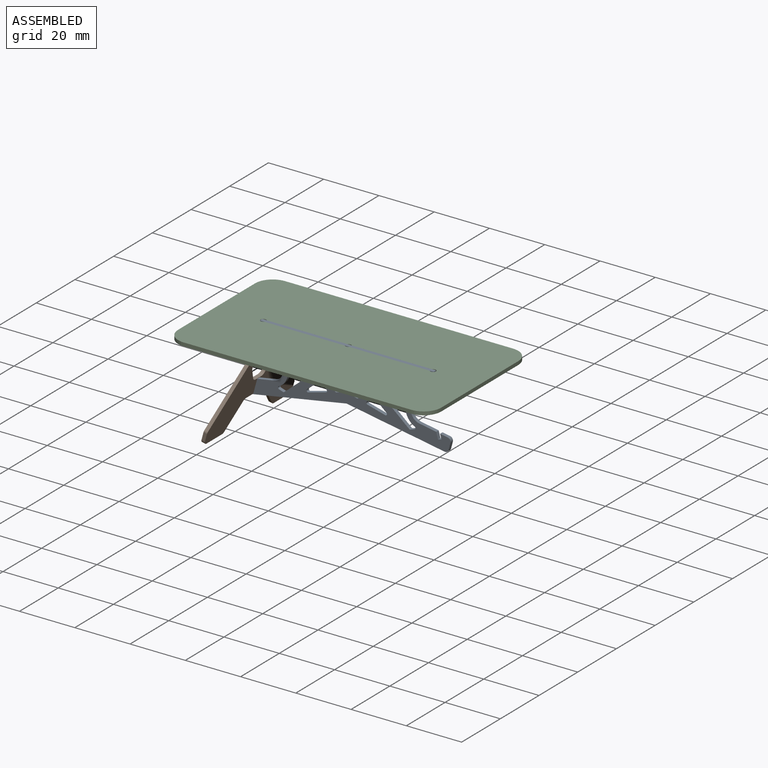
[diagram: assembled view]
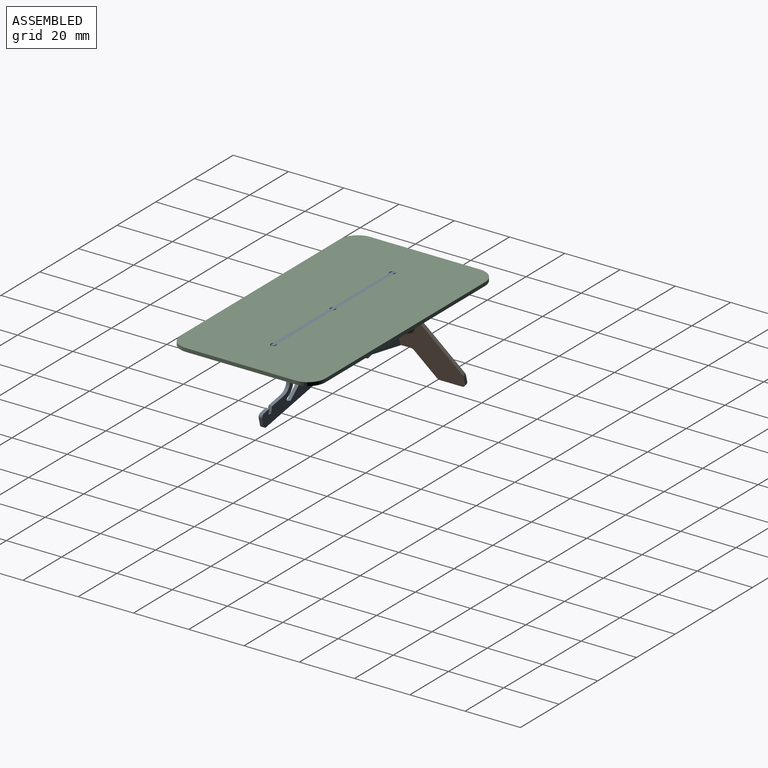
[diagram: assembled view, second angle]
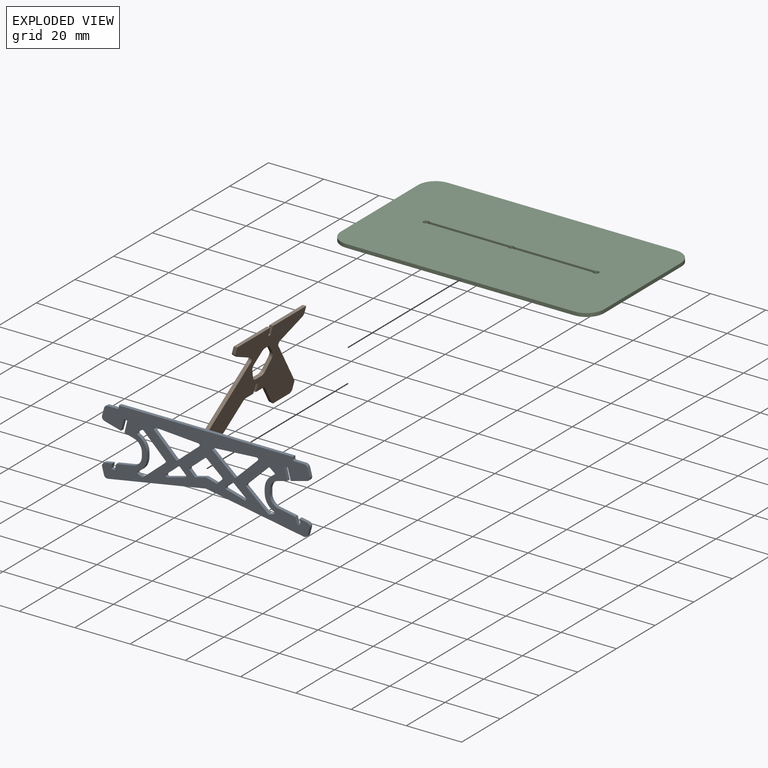
[diagram: exploded view]
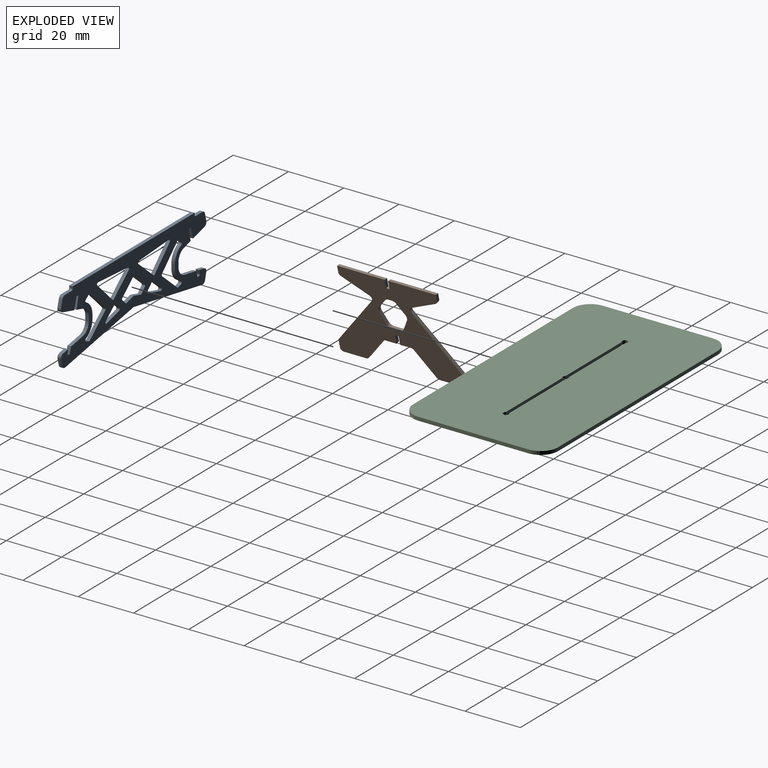
[diagram: exploded view, second angle]
ASSEMBLY  parts=3 mates=3
PART A: 109 faces, bbox 75.2x1.3x25.1 mm
  f0: cylinder r=0.51mm len=1.27mm, axis (0,1,0), area 0.9mm2, adj f1,f106,f107,f108
  f1: plane 7.85x7.68mm, normal (-0.7,0,-0.71), area 13.9mm2, adj f0,f2,f107,f108
  f2: cylinder r=0.51mm len=1.27mm, axis (0,1,0), area 1.1mm2, adj f1,f3,f107,f108
  f3: plane 7.91x6.75mm, normal (-0.65,0,0.76), area 13.2mm2, adj f2,f4,f107,f108
  f4: cylinder r=0.51mm len=1.27mm, axis (0,1,0), area 0.7mm2, adj f3,f5,f107,f108
  f5: plane 1.45x1.27mm, normal (0.32,0,0.95), area 2mm2, adj f4,f6,f107,f108
  f6: cylinder r=0.51mm len=1.27mm, axis (0,1,0), area 1.5mm2, adj f5,f7,f107,f108
  f7: cylinder r=5.69mm len=5.16mm, axis (0,1,0), area 8.2mm2, adj f6,f8,f107,f108
  f8: plane 1.5x1.27mm, normal (1,0,0), area 1.9mm2, adj f7,f9,f107,f108
  f9: cylinder r=5.69mm len=5.19mm, axis (0,1,0), area 8.3mm2, adj f8,f10,f107,f108
  f10: cylinder r=0.51mm len=1.27mm, axis (0,1,0), area 1.3mm2, adj f9,f106,f107,f108
  f11: plane 3.48x1.27mm, normal (0.27,0,0.96), area 4.6mm2, adj f12,f99,f107,f108
  f12: cylinder r=0.51mm len=1.27mm, axis (0,1,0), area 0.3mm2, adj f11,f13,f107,f108
  f13: plane 3.59x1.27mm, normal (-0.26,0,0.97), area 4.7mm2, adj f12,f14,f107,f108
  f14: cylinder r=0.51mm len=1.27mm, axis (0,1,0), area 0.7mm2, adj f13,f15,f107,f108
  f15: plane 1.69x1.66mm, normal (0.7,0,0.71), area 3mm2, adj f14,f16,f107,f108
  f16: cylinder r=0.51mm len=1.27mm, axis (0,1,0), area 1.1mm2, adj f15,f17,f107,f108
  f17: plane 5.49x4.69mm, normal (0.65,0,-0.76), area 9.2mm2, adj f16,f18,f107,f108
  f18: cylinder r=0.51mm len=1.27mm, axis (0,1,0), area 0.9mm2, adj f17,f19,f107,f108
  f19: plane 5.49x4.69mm, normal (-0.65,0,-0.76), area 9.2mm2, adj f18,f20,f107,f108
  f20: cylinder r=0.51mm len=1.27mm, axis (0,1,0), area 1.1mm2, adj f19,f21,f107,f108
  f21: plane 1.69x1.65mm, normal (-0.7,0,0.71), area 3mm2, adj f20,f99,f107,f108
  f22: cylinder r=0.51mm len=1.27mm, axis (0,1,0), area 1mm2, adj f23,f100,f107,f108
  f23: plane 7.81x6.67mm, normal (0.65,0,0.76), area 13mm2, adj f22,f24,f107,f108
  f24: cylinder r=0.51mm len=1.27mm, axis (0,1,0), area 1.5mm2, adj f23,f25,f107,f108
  f25: plane 15.68x1.27mm, normal (0.07,0,-1), area 20mm2, adj f24,f26,f107,f108
  f26: cylinder r=0.51mm len=1.27mm, axis (0,1,0), area 1.6mm2, adj f25,f100,f107,f108
  f27: cylinder r=0.51mm len=1.27mm, axis (0,1,0), area 1.4mm2, adj f28,f101,f107,f108
  f28: plane 2.06x2.02mm, normal (0.7,0,-0.71), area 3.7mm2, adj f27,f29,f107,f108
  f29: cylinder r=0.51mm len=1.27mm, axis (0,1,0), area 1mm2, adj f28,f30,f107,f108
  f30: plane 4.39x3.74mm, normal (-0.65,0,-0.76), area 7.3mm2, adj f29,f31,f107,f108
  f31: cylinder r=0.51mm len=1.27mm, axis (0,1,0), area 1.7mm2, adj f30,f101,f107,f108
  f32: plane 5.95x1.59mm, normal (-0.26,0,-0.97), area 7.8mm2, adj f33,f102,f107,f108
  f33: plane 4.19x1.27mm, normal (0.97,0,-0.26), area 5.5mm2, adj f32,f34,f107,f108
  f34: plane 1.27x1.16mm, normal (-0.24,0,-0.97), area 1.5mm2, adj f33,f35,f107,f108
  f35: plane 4.24x1.27mm, normal (-0.97,0,0.24), area 5.5mm2, adj f34,f36,f107,f108
  f36: plane 3.48x1.27mm, normal (-0.26,0,-0.97), area 4.6mm2, adj f35,f37,f107,f108
  f37: cylinder r=3.81mm len=3.68mm, axis (0,1,0), area 6.3mm2, adj f36,f38,f107,f108
  f38: plane 1.5x1.27mm, normal (-1,0,0), area 1.9mm2, adj f37,f39,f107,f108
  f39: cylinder r=3.81mm len=3.75mm, axis (0,1,0), area 6.8mm2, adj f38,f40,f107,f108
  f40: plane 6.08x1.27mm, normal (-0.17,0,0.98), area 7.8mm2, adj f39,f41,f107,f108
  f41: plane 2.29x1.27mm, normal (-0.96,0,0.27), area 3mm2, adj f40,f42,f107,f108
  f42: plane 1.27x1.23mm, normal (0.26,0,0.97), area 1.6mm2, adj f41,f43,f107,f108
  f43: plane 1.72x1.27mm, normal (0.97,0,-0.26), area 2.3mm2, adj f42,f44,f107,f108
  f44: plane 2.73x1.27mm, normal (-0.17,0,0.98), area 3.5mm2, adj f43,f45,f107,f108
  f45: cylinder r=1.27mm len=1.58mm, axis (0,1,0), area 2.7mm2, adj f44,f46,f107,f108
  f46: plane 2.44x1.27mm, normal (-0.97,0,-0.26), area 3.2mm2, adj f45,f47,f107,f108
  f47: cylinder r=1.27mm len=1.45mm, axis (0,1,0), area 2.4mm2, adj f46,f48,f107,f108
  f48: plane 35.43x6.25mm, normal (0.17,0,-0.98), area 45.7mm2, adj f47,f49,f107,f108
  f49: plane 35.43x6.25mm, normal (-0.17,0,-0.98), area 45.7mm2, adj f48,f50,f107,f108
  f50: cylinder r=1.27mm len=1.45mm, axis (0,1,0), area 2.4mm2, adj f49,f51,f107,f108
  f51: plane 2.44x1.27mm, normal (0.97,0,-0.26), area 3.2mm2, adj f50,f52,f107,f108
  f52: cylinder r=1.27mm len=1.58mm, axis (0,1,0), area 2.7mm2, adj f51,f53,f107,f108
  f53: plane 2.73x1.27mm, normal (0.17,0,0.98), area 3.5mm2, adj f52,f54,f107,f108
  f54: plane 1.72x1.27mm, normal (-0.97,0,-0.26), area 2.3mm2, adj f53,f55,f107,f108
  f55: plane 1.27x1.23mm, normal (-0.26,0,0.97), area 1.6mm2, adj f54,f56,f107,f108
  f56: plane 2.29x1.27mm, normal (0.96,0,0.27), area 3mm2, adj f55,f57,f107,f108
  f57: plane 6.08x1.27mm, normal (0.17,0,0.98), area 7.8mm2, adj f56,f58,f107,f108
  f58: cylinder r=3.81mm len=3.75mm, axis (0,1,0), area 6.8mm2, adj f57,f59,f107,f108
  f59: plane 1.5x1.27mm, normal (1,0,0), area 1.9mm2, adj f58,f60,f107,f108
  f60: cylinder r=3.81mm len=3.68mm, axis (0,1,0), area 6.3mm2, adj f59,f61,f107,f108
  f61: plane 3.48x1.27mm, normal (0.26,0,-0.97), area 4.6mm2, adj f60,f62,f107,f108
  f62: plane 4.24x1.27mm, normal (0.97,0,0.24), area 5.5mm2, adj f61,f63,f107,f108
  f63: plane 1.27x1.16mm, normal (0.24,0,-0.97), area 1.5mm2, adj f62,f64,f107,f108
  f64: plane 4.19x1.27mm, normal (-0.97,0,-0.26), area 5.5mm2, adj f63,f65,f107,f108
  f65: plane 5.95x1.59mm, normal (0.26,0,-0.97), area 7.8mm2, adj f64,f66,f107,f108
  f66: cylinder r=1.27mm len=1.56mm, axis (0,1,0), area 2.5mm2, adj f65,f67,f107,f108
  f67: plane 2.74x1.27mm, normal (0.97,0,0.26), area 3.6mm2, adj f66,f68,f107,f108
  f68: cylinder r=1.27mm len=1.27mm, axis (0,1,0), area 2.1mm2, adj f67,f69,f107,f108
  f69: plane 3.6x1.27mm, normal (0,0,1), area 4.6mm2, adj f68,f70,f107,f108
  f70: cylinder r=0.51mm len=1.27mm, axis (0,1,0), area 1mm2, adj f69,f71,f107,f108
  f71: plane 1.27x0.76mm, normal (1,0,0), area 1mm2, adj f70,f72,f107,f108
  f72: plane 62.99x1.27mm, normal (0,0,1), area 80mm2, adj f71,f73,f107,f108
  f73: plane 1.27x0.76mm, normal (-1,0,0), area 1mm2, adj f72,f74,f107,f108
  f74: cylinder r=0.51mm len=1.27mm, axis (0,1,0), area 1mm2, adj f73,f75,f107,f108
  f75: plane 3.6x1.27mm, normal (0,0,1), area 4.6mm2, adj f74,f76,f107,f108
  f76: cylinder r=1.27mm len=1.27mm, axis (0,1,0), area 2.1mm2, adj f75,f77,f107,f108
  f77: plane 2.74x1.27mm, normal (-0.97,0,0.26), area 3.6mm2, adj f76,f102,f107,f108
  f78: plane 1.59x1.27mm, normal (-0.59,0,-0.81), area 2.5mm2, adj f79,f103,f107,f108
  f79: cylinder r=0.51mm len=1.27mm, axis (0,1,0), area 1.3mm2, adj f78,f80,f107,f108
  f80: cylinder r=5.69mm len=5.19mm, axis (0,1,0), area 8.3mm2, adj f79,f81,f107,f108
  f81: plane 1.5x1.27mm, normal (-1,0,0), area 1.9mm2, adj f80,f82,f107,f108
  f82: cylinder r=5.69mm len=5.16mm, axis (0,1,0), area 8.2mm2, adj f81,f83,f107,f108
  f83: cylinder r=0.51mm len=1.27mm, axis (0,1,0), area 1.5mm2, adj f82,f84,f107,f108
  f84: plane 1.45x1.27mm, normal (-0.32,0,0.95), area 2mm2, adj f83,f85,f107,f108
  f85: cylinder r=0.51mm len=1.27mm, axis (0,1,0), area 0.7mm2, adj f84,f86,f107,f108
  f86: plane 7.91x6.75mm, normal (0.65,0,0.76), area 13.2mm2, adj f85,f87,f107,f108
  f87: cylinder r=0.51mm len=1.27mm, axis (0,1,0), area 1.1mm2, adj f86,f88,f107,f108
  f88: plane 7.85x7.68mm, normal (0.7,0,-0.71), area 13.9mm2, adj f87,f103,f107,f108
  f89: plane 6.45x1.73mm, normal (-0.26,0,0.97), area 8.5mm2, adj f90,f104,f107,f108
  f90: cylinder r=0.51mm len=1.27mm, axis (0,1,0), area 1.7mm2, adj f89,f91,f107,f108
  f91: plane 4.39x3.74mm, normal (0.65,0,-0.76), area 7.3mm2, adj f90,f92,f107,f108
  f92: cylinder r=0.51mm len=1.27mm, axis (0,1,0), area 1mm2, adj f91,f93,f107,f108
  f93: plane 2.06x2.02mm, normal (-0.7,0,-0.71), area 3.7mm2, adj f92,f104,f107,f108
  f94: plane 15.68x1.27mm, normal (-0.07,0,-1), area 20mm2, adj f95,f105,f107,f108
  f95: cylinder r=0.51mm len=1.27mm, axis (0,1,0), area 1.5mm2, adj f94,f96,f107,f108
  f96: plane 7.81x6.67mm, normal (-0.65,0,0.76), area 13mm2, adj f95,f97,f107,f108
  f97: cylinder r=0.51mm len=1.27mm, axis (0,1,0), area 1mm2, adj f96,f98,f107,f108
  f98: plane 7.87x7.7mm, normal (0.7,0,0.71), area 14mm2, adj f97,f105,f107,f108
  f99: cylinder r=0.51mm len=1.27mm, axis (0,1,0), area 0.7mm2, adj f11,f21,f107,f108
  f100: plane 7.87x7.7mm, normal (-0.7,0,0.71), area 14mm2, adj f22,f26,f107,f108
  f101: plane 6.45x1.73mm, normal (0.26,0,0.97), area 8.5mm2, adj f27,f31,f107,f108
  f102: cylinder r=1.27mm len=1.56mm, axis (0,1,0), area 2.5mm2, adj f32,f77,f107,f108
  f103: cylinder r=0.51mm len=1.27mm, axis (0,1,0), area 0.9mm2, adj f78,f88,f107,f108
  f104: cylinder r=0.51mm len=1.27mm, axis (0,1,0), area 1.4mm2, adj f89,f93,f107,f108
  f105: cylinder r=0.51mm len=1.27mm, axis (0,1,0), area 1.6mm2, adj f94,f98,f107,f108
  f106: plane 1.59x1.27mm, normal (0.59,0,-0.81), area 2.5mm2, adj f0,f10,f107,f108
  f107: plane 75.21x25.06mm, normal (0,-1,0), area 950.5mm2, adj f0,f1,f2,f3,f4,f5,f6,f7
  f108: plane 75.21x25.06mm, normal (0,1,0), area 950.5mm2, adj f0,f1,f2,f3,f4,f5,f6,f7
PART B: 48 faces, bbox 1.3x45.2x33.5 mm
  f0: plane 2.52x1.27mm, normal (0,1,0), area 3mm2, adj f3,f31,f45,f47
  f1: plane 3.18x1.27mm, normal (0,-1,0), area 3.8mm2, adj f3,f32,f45,f47
  f2: plane 3.18x1.27mm, normal (0,1,0), area 3.8mm2, adj f3,f32,f45,f46
  f3: plane 45.2x33.19mm, normal (-1,0,0), area 759.8mm2, adj f0,f1,f2,f4,f5,f6,f7,f8
  f4: plane 2.52x1.27mm, normal (0,-1,0), area 3mm2, adj f3,f5,f45,f46
  f5: cylinder r=1.27mm len=1.27mm, axis (-1,0,0), area 1.8mm2, adj f3,f4,f6,f45
  f6: plane 9.5x4.41mm, normal (0,-0.42,-0.91), area 13.3mm2, adj f3,f5,f7,f45
  f7: cylinder r=1.27mm len=1.95mm, axis (-1,0,0), area 2.9mm2, adj f3,f6,f8,f45
  f8: plane 18.84x15.18mm, normal (0,-0.78,0.63), area 30.7mm2, adj f3,f7,f9,f45
  f9: cylinder r=1.27mm len=1.27mm, axis (-1,0,0), area 1.1mm2, adj f3,f8,f10,f45
  f10: plane 2.59x1.27mm, normal (0,-1,0), area 3.3mm2, adj f3,f9,f11,f45
  f11: cylinder r=1.27mm len=1.27mm, axis (-1,0,0), area 2.5mm2, adj f3,f10,f12,f45
  f12: plane 8x1.27mm, normal (0,0,-1), area 10.2mm2, adj f3,f11,f13,f45
  f13: cylinder r=1.27mm len=1.27mm, axis (-1,0,0), area 1.4mm2, adj f3,f12,f14,f45
  f14: plane 8.45x6.81mm, normal (0,0.78,-0.63), area 13.8mm2, adj f3,f13,f15,f45
  f15: cylinder r=1.27mm len=1.27mm, axis (-1,0,0), area 1.4mm2, adj f3,f14,f16,f45
  f16: plane 3.91x1.27mm, normal (0,0,-1), area 5mm2, adj f3,f15,f17,f45
  f17: plane 3.25x1.27mm, normal (0,1,0), area 4.1mm2, adj f3,f16,f18,f45
  f18: plane 1.27x1.27mm, normal (0,0,-1), area 1.6mm2, adj f3,f17,f19,f45
  f19: plane 3.25x1.27mm, normal (0,-1,0), area 4.1mm2, adj f3,f18,f20,f45
  f20: plane 3.91x1.27mm, normal (0,0,-1), area 5mm2, adj f3,f19,f21,f45
  f21: cylinder r=1.27mm len=1.27mm, axis (-1,0,0), area 1.4mm2, adj f3,f20,f22,f45
  f22: plane 8.45x6.81mm, normal (0,-0.78,-0.63), area 13.8mm2, adj f3,f21,f23,f45
  f23: cylinder r=1.27mm len=1.27mm, axis (-1,0,0), area 1.4mm2, adj f3,f22,f24,f45
  f24: plane 8x1.27mm, normal (0,0,-1), area 10.2mm2, adj f3,f23,f25,f45
  f25: cylinder r=1.27mm len=1.27mm, axis (-1,0,0), area 2.5mm2, adj f3,f24,f26,f45
  f26: plane 2.59x1.27mm, normal (0,1,0), area 3.3mm2, adj f3,f25,f27,f45
  f27: cylinder r=1.27mm len=1.27mm, axis (-1,0,0), area 1.1mm2, adj f3,f26,f28,f45
  f28: plane 18.84x15.18mm, normal (0,0.78,0.63), area 30.7mm2, adj f3,f27,f29,f45
  f29: cylinder r=1.27mm len=1.95mm, axis (-1,0,0), area 2.9mm2, adj f3,f28,f30,f45
  f30: plane 9.5x4.41mm, normal (0,0.42,-0.91), area 13.3mm2, adj f3,f29,f31,f45
  f31: cylinder r=1.27mm len=1.27mm, axis (-1,0,0), area 1.8mm2, adj f0,f3,f30,f45
  f32: plane 1.27x1.27mm, normal (0,0,1), area 1.6mm2, adj f1,f2,f3,f45
  f33: cylinder r=2.03mm len=1.27mm, axis (-1,0,0), area 1.7mm2, adj f3,f34,f44,f45
  f34: plane 3.59x2.86mm, normal (0,-0.78,-0.62), area 5.8mm2, adj f3,f33,f35,f45
  f35: cylinder r=2.03mm len=2.22mm, axis (-1,0,0), area 3mm2, adj f3,f34,f36,f45
  f36: plane 3.71x1.79mm, normal (0,-0.9,0.43), area 5.2mm2, adj f3,f35,f37,f45
  f37: cylinder r=2.03mm len=1.83mm, axis (-1,0,0), area 2.9mm2, adj f3,f36,f38,f45
  f38: plane 2.72x1.27mm, normal (0,0,1), area 3.4mm2, adj f3,f37,f39,f45
  f39: cylinder r=2.03mm len=1.83mm, axis (-1,0,0), area 2.9mm2, adj f3,f38,f40,f45
  f40: plane 3.71x1.79mm, normal (0,0.9,0.43), area 5.2mm2, adj f3,f39,f41,f45
  f41: cylinder r=2.03mm len=2.22mm, axis (-1,0,0), area 3mm2, adj f3,f40,f42,f45
  f42: plane 3.59x2.86mm, normal (0,0.78,-0.62), area 5.8mm2, adj f3,f41,f43,f45
  f43: cylinder r=2.03mm len=1.27mm, axis (-1,0,0), area 1.7mm2, adj f3,f42,f44,f45
  f44: plane 1.27x1.14mm, normal (0,0,-1), area 1.5mm2, adj f3,f33,f43,f45
  f45: plane 45.2x33.53mm, normal (1,0,0), area 771.5mm2, adj f0,f1,f2,f4,f5,f6,f7,f8
  f46: plane 17.19x1.27mm, normal (-0.26,0,0.97), area 22.6mm2, adj f2,f3,f4,f45
  f47: plane 17.19x1.27mm, normal (-0.26,0,0.97), area 22.6mm2, adj f0,f1,f3,f45
PART C: 18 faces, bbox 95.2x52.5x1.3 mm
  f0: plane 95.21x52.48mm, normal (0,0,1), area 4878.8mm2, adj f2,f3,f4,f5,f6,f7,f8,f9
  f1: plane 95.21x52.48mm, normal (0,0,-1), area 4878.8mm2, adj f2,f3,f4,f5,f6,f7,f8,f9
  f2: plane 39.78x1.27mm, normal (1,0,0), area 50.5mm2, adj f0,f1,f3,f9
  f3: cylinder r=6.35mm len=6.35mm, axis (0,0,-1), area 12.7mm2, adj f0,f1,f2,f4
  f4: plane 82.51x1.27mm, normal (0,1,0), area 104.8mm2, adj f0,f1,f3,f5
  f5: cylinder r=6.35mm len=6.35mm, axis (0,0,-1), area 12.7mm2, adj f0,f1,f4,f6
  f6: plane 39.78x1.27mm, normal (-1,0,0), area 50.5mm2, adj f0,f1,f5,f7
  f7: cylinder r=6.35mm len=6.35mm, axis (0,0,-1), area 12.7mm2, adj f0,f1,f6,f8
  f8: plane 82.51x1.27mm, normal (0,-1,0), area 104.8mm2, adj f0,f1,f7,f9
  f9: cylinder r=6.35mm len=6.35mm, axis (0,0,-1), area 12.7mm2, adj f0,f1,f2,f8
  f10: plane 29.15x1.27mm, normal (0,-1,0), area 37mm2, adj f0,f1,f11,f17
  f11: cylinder r=1.02mm len=1.59mm, axis (0,0,-1), area 2.3mm2, adj f0,f1,f10,f12
  f12: plane 29.15x1.27mm, normal (0,-1,0), area 37mm2, adj f0,f1,f11,f13
  f13: cylinder r=1.02mm len=2.03mm, axis (0,0,-1), area 6.4mm2, adj f0,f1,f12,f14
  f14: plane 29.15x1.27mm, normal (0,1,0), area 37mm2, adj f0,f1,f13,f15
  f15: cylinder r=1.02mm len=1.59mm, axis (0,0,-1), area 2.3mm2, adj f0,f1,f14,f16
  f16: plane 29.15x1.27mm, normal (0,1,0), area 37mm2, adj f0,f1,f15,f17
  f17: cylinder r=1.02mm len=2.03mm, axis (0,0,-1), area 6.4mm2, adj f0,f1,f10,f16
PLACE A t=(43.28,37.13,-0.53)mm
PLACE B rot(axis=(0,1,0),15deg) t=(14.51,36.47,-1.47)mm
PLACE C t=(43.38,36.5,-1.8)mm
MATE planar B.f46 <-> C.f11  axis (0,0,1) through (15.07,27.24,-1.8)mm
MATE planar C.f14 <-> A.f107  axis (0,1,0) through (28.01,35.86,-1.16)mm
MATE planar A.f72 <-> C.f11  axis (0,0,1) through (43.28,36.5,-0.53)mm
